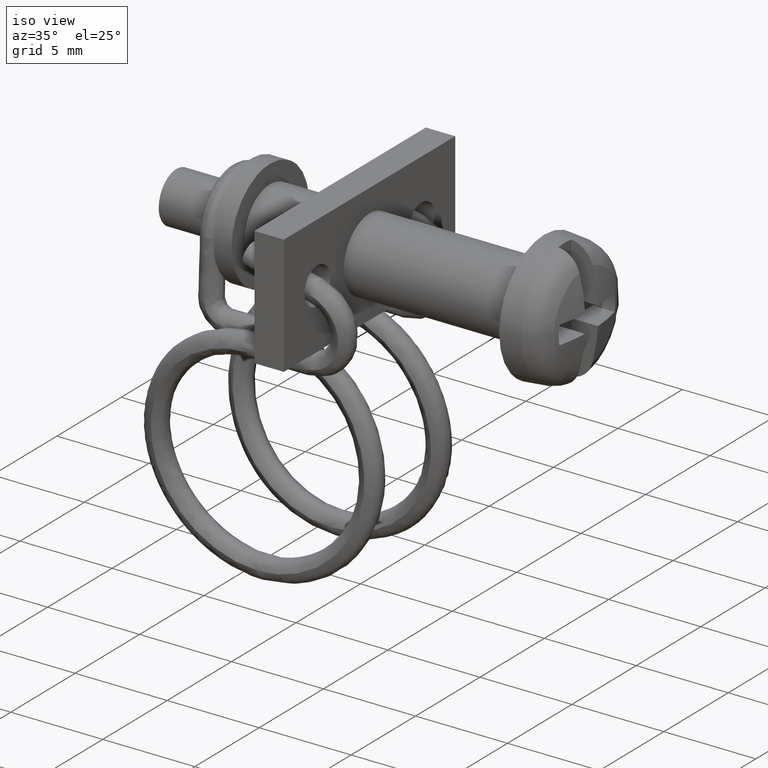
[diagram: clean part render]
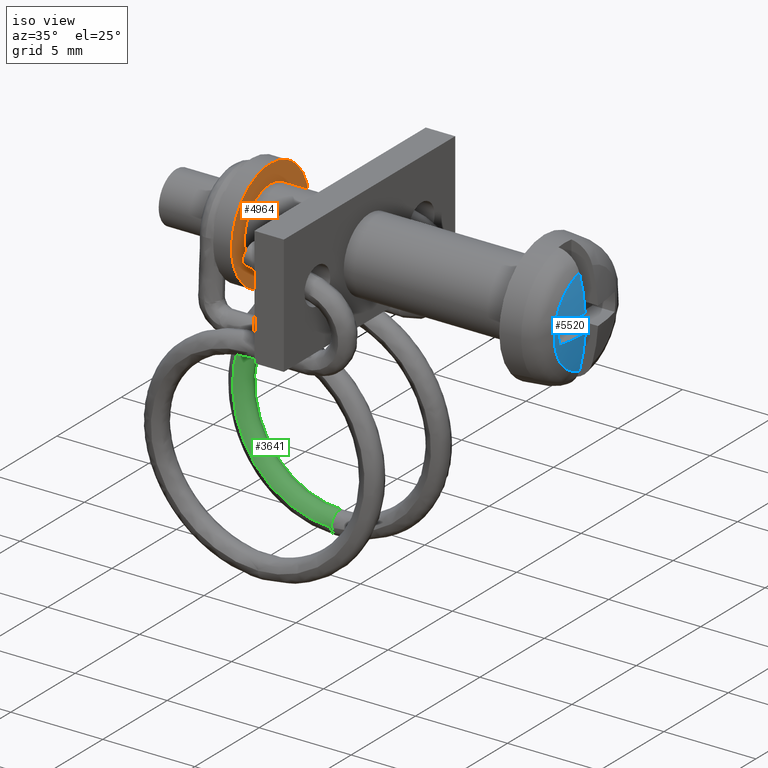
[diagram: same view with three faces highlighted in distinct colors, each labeled with its STEP entity id]
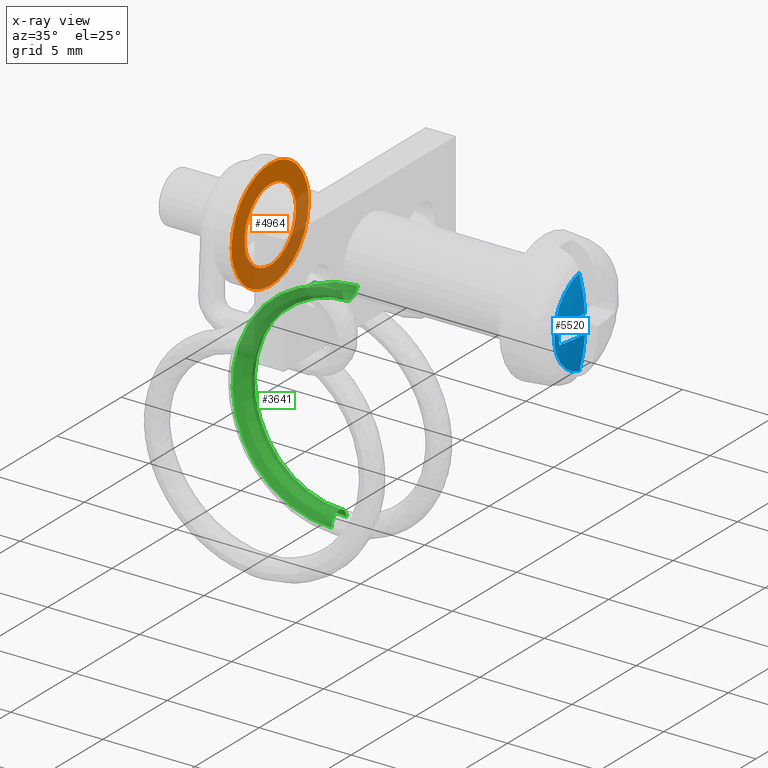
[diagram: x-ray of the same camera — body ghosted, the three highlighted faces saturated]
A machine part, iso view with three faces highlighted in distinct colors.
The next image is the same camera in x-ray (body ghosted, the three faces saturated) — at least one of them is partly hidden behind the body in this view.
Their STEP definitions:

[orange] entity #4964 — the highlighted face is a freeform B-spline surface patch.
#4744=CARTESIAN_POINT('',(-14.900000000000000,2.065063670003760,2.176123079450290));
#4745=VERTEX_POINT('',#4744);
#4751=CARTESIAN_POINT('',(-14.900000000000000,3.000000000000089,-0.000000254959403));
#4752=VERTEX_POINT('',#4751);
#4753=CARTESIAN_POINT('',(-14.900000000000000,2.065063670003760,2.176123079450290));
#4754=CARTESIAN_POINT('',(-14.899999999999970,2.203054138044590,2.045202508520133));
#4755=CARTESIAN_POINT('',(-14.900000000000031,2.462372381570249,1.747388911733006));
#4756=CARTESIAN_POINT('',(-14.899999999999990,2.734672780195056,1.271731790630984));
#4757=CARTESIAN_POINT('',(-14.900000000000020,2.943889484904496,0.684723662998959));
#4758=CARTESIAN_POINT('',(-14.899999999999990,3.000087652233754,0.266311535735887));
#4759=CARTESIAN_POINT('',(-14.900000000000000,3.000000000000089,-0.000000254959403));
#4760=B_SPLINE_CURVE_WITH_KNOTS('',3,(#4753,#4754,#4755,#4756,#4757,#4758,#4759),.UNSPECIFIED.,.F.,.U.,(4,1,1,1,4),(3.698902E-009,0.570644660897853,1.179333868178889,1.635846353205389,2.434750866228688),.UNSPECIFIED.);
#4761=EDGE_CURVE('',#4745,#4752,#4760,.T.);
#4763=CARTESIAN_POINT('',(-14.900000000000000,0.0,-3.000000000000100));
#4764=VERTEX_POINT('',#4763);
#4765=CARTESIAN_POINT('',(-14.900000000000000,3.000000000000089,-0.000000254959403));
#4766=CARTESIAN_POINT('',(-14.900000000000031,3.000079297246153,-0.257718953277689));
#4767=CARTESIAN_POINT('',(-14.899999999999970,2.950662022771410,-0.638099746924043));
#4768=CARTESIAN_POINT('',(-14.900000000000050,2.773244525541358,-1.175129320193690));
#4769=CARTESIAN_POINT('',(-14.899999999999990,2.560130134990668,-1.592137555500575));
#4770=CARTESIAN_POINT('',(-14.900000000000009,2.249570305680098,-2.005540957194263));
#4771=CARTESIAN_POINT('',(-14.899999999999990,1.919504296492258,-2.319782161040233));
#4772=CARTESIAN_POINT('',(-14.900000000000050,1.497325036896052,-2.617146443446997));
#4773=CARTESIAN_POINT('',(-14.899999999999890,1.017386156787128,-2.844150935536641));
#4774=CARTESIAN_POINT('',(-14.900000000000210,0.478599515442199,-2.975563080418534));
#4775=CARTESIAN_POINT('',(-14.899999999999739,0.147259996045073,-3.000004708939242));
#4776=CARTESIAN_POINT('',(-14.900000000000000,0.0,-3.000000000000100));
#4777=B_SPLINE_CURVE_WITH_KNOTS('',3,(#4765,#4766,#4767,#4768,#4769,#4770,#4771,#4772,#4773,#4774,#4775,#4776),.UNSPECIFIED.,.F.,.U.,(4,1,1,1,1,1,1,1,1,4),(0.000000010533798,0.773128922152843,1.141288644326732,1.693528282364895,2.172138656100433,2.687541942318203,3.055703767038952,3.718393118668230,4.270634589381594,4.712418404925385),.UNSPECIFIED.);
#4778=EDGE_CURVE('',#4752,#4764,#4777,.T.);
#4780=CARTESIAN_POINT('',(-14.900000000000000,-2.065063670003762,-2.176123079450290));
#4781=VERTEX_POINT('',#4780);
#4782=CARTESIAN_POINT('',(-14.900000000000000,0.0,-3.000000000000100));
#4783=CARTESIAN_POINT('',(-14.900000000000009,-0.225396620510190,-3.000044230655744));
#4784=CARTESIAN_POINT('',(-14.900000000000000,-0.616848310344913,-2.955666018756227));
#4785=CARTESIAN_POINT('',(-14.900000000000009,-1.149921729438621,-2.785824454536849));
#4786=CARTESIAN_POINT('',(-14.899999999999990,-1.626408777030147,-2.541073476825978));
#4787=CARTESIAN_POINT('',(-14.900000000000009,-1.918797114302085,-2.314964272389476));
#4788=CARTESIAN_POINT('',(-14.900000000000000,-2.065063670003762,-2.176123079450290));
#4789=B_SPLINE_CURVE_WITH_KNOTS('',3,(#4782,#4783,#4784,#4785,#4786,#4787,#4788),.UNSPECIFIED.,.F.,.U.,(4,1,1,1,4),(4.853961E-009,0.676183821870202,1.174419929684330,1.672662295759273,2.277667985881394),.UNSPECIFIED.);
#4790=EDGE_CURVE('',#4764,#4781,#4789,.T.);
#4824=CARTESIAN_POINT('',(-14.900000000000000,-3.000000000000089,0.000000254959396));
#4825=VERTEX_POINT('',#4824);
#4826=CARTESIAN_POINT('',(-14.900000000000000,-2.065063670003762,-2.176123079450290));
#4827=CARTESIAN_POINT('',(-14.900000000000009,-2.184650237468720,-2.062654016862360));
#4828=CARTESIAN_POINT('',(-14.899999999999990,-2.413525502017810,-1.806445352798304));
#4829=CARTESIAN_POINT('',(-14.900000000000009,-2.703387299111326,-1.342053300368203));
#4830=CARTESIAN_POINT('',(-14.899999999999990,-2.937108377937519,-0.735454768230975));
#4831=CARTESIAN_POINT('',(-14.900000000000009,-3.000078610821291,-0.266306797293658));
#4832=CARTESIAN_POINT('',(-14.900000000000000,-3.000000000000089,0.000000254959396));
#4833=B_SPLINE_CURVE_WITH_KNOTS('',3,(#4826,#4827,#4828,#4829,#4830,#4831,#4832),.UNSPECIFIED.,.F.,.U.,(4,1,1,1,4),(3.698852E-009,0.494557996349930,1.027164554394919,1.635846353205385,2.434750866228681),.UNSPECIFIED.);
#4834=EDGE_CURVE('',#4781,#4825,#4833,.T.);
#4836=CARTESIAN_POINT('',(-14.900000000000000,0.0,3.000000000000100));
#4837=VERTEX_POINT('',#4836);
#4838=CARTESIAN_POINT('',(-14.900000000000000,-3.000000000000089,0.000000254959396));
#4839=CARTESIAN_POINT('',(-14.900000000000009,-3.000026513134083,0.196350348227020));
#4840=CARTESIAN_POINT('',(-14.900000000000009,-2.969763660047208,0.503132686380132));
#4841=CARTESIAN_POINT('',(-14.899999999999990,-2.853509789658239,0.955478772585942));
#4842=CARTESIAN_POINT('',(-14.900000000000020,-2.714266081527732,1.297552926623071));
#4843=CARTESIAN_POINT('',(-14.900000000000009,-2.508357041365851,1.661032060962387));
#4844=CARTESIAN_POINT('',(-14.899999999999910,-2.234791709863325,2.025236925857723));
#4845=CARTESIAN_POINT('',(-14.900000000000290,-1.864381124378514,2.369328998035966));
#4846=CARTESIAN_POINT('',(-14.899999999999570,-1.472417976655106,2.624299791176642));
#4847=CARTESIAN_POINT('',(-14.900000000000270,-1.072295233923690,2.813553994308215));
#4848=CARTESIAN_POINT('',(-14.900000000000020,-0.589038723074904,2.960158245257373));
#4849=CARTESIAN_POINT('',(-14.899999999999750,-0.208621496937675,3.000030170632015));
#4850=CARTESIAN_POINT('',(-14.900000000000000,0.0,3.000000000000100));
#4851=B_SPLINE_CURVE_WITH_KNOTS('',3,(#4838,#4839,#4840,#4841,#4842,#4843,#4844,#4845,#4846,#4847,#4848,#4849,#4850),.UNSPECIFIED.,.F.,.U.,(4,1,1,1,1,1,1,1,1,1,4),(0.000000010533904,0.589045832085029,0.920392746120660,1.399001061477161,1.693528282364955,2.172138656100449,2.761175686075597,3.202968723350426,3.571130013842192,4.086554264732343,4.712418404925388),.UNSPECIFIED.);
#4852=EDGE_CURVE('',#4825,#4837,#4851,.T.);
#4854=CARTESIAN_POINT('',(-14.900000000000000,0.0,3.000000000000100));
#4855=CARTESIAN_POINT('',(-14.900000000000020,0.154216360976417,3.000008766000091));
#4856=CARTESIAN_POINT('',(-14.899999999999981,0.450783488535101,2.977081046680209));
#4857=CARTESIAN_POINT('',(-14.900000000000039,0.902876273562747,2.873431336887848));
#4858=CARTESIAN_POINT('',(-14.899999999999959,1.278789218109883,2.723455195217854));
#4859=CARTESIAN_POINT('',(-14.900000000000061,1.682993064511282,2.497297364020336));
#4860=CARTESIAN_POINT('',(-14.899999999999970,1.918799495174014,2.314968376235582));
#4861=CARTESIAN_POINT('',(-14.900000000000000,2.065063670003760,2.176123079450290));
#4862=B_SPLINE_CURVE_WITH_KNOTS('',3,(#4854,#4855,#4856,#4857,#4858,#4859,#4860,#4861),.UNSPECIFIED.,.F.,.U.,(4,1,1,1,1,4),(4.853952E-009,0.462650178354103,0.889715802607461,1.387952188131117,1.672662295759283,2.277667985881392),.UNSPECIFIED.);
#4863=EDGE_CURVE('',#4837,#4745,#4862,.T.);
#4869=CARTESIAN_POINT('',(-14.900000000000000,-3.299699988370934,3.299699988370946));
#4870=CARTESIAN_POINT('',(-14.900000000000000,-3.299699988370934,-3.299700149303487));
#4871=CARTESIAN_POINT('',(-14.900000000000000,3.299700149303475,3.299699988370946));
#4872=CARTESIAN_POINT('',(-14.900000000000000,3.299700149303475,-3.299700149303487));
#4873=B_SPLINE_SURFACE_WITH_KNOTS('',1,1,((#4869,#4871),(#4870,#4872)),.UNSPECIFIED.,.F.,.F.,.U.,(2,2),(2,2),(0.0,6.599400137674433),(0.0,6.599400137674409),.UNSPECIFIED.);
#4874=ORIENTED_EDGE('',*,*,#4852,.F.);
#4875=ORIENTED_EDGE('',*,*,#4834,.F.);
#4876=ORIENTED_EDGE('',*,*,#4790,.F.);
#4877=ORIENTED_EDGE('',*,*,#4778,.F.);
#4878=ORIENTED_EDGE('',*,*,#4761,.F.);
#4879=ORIENTED_EDGE('',*,*,#4863,.F.);
#4880=EDGE_LOOP('',(#4874,#4875,#4876,#4877,#4878,#4879));
#4881=FACE_OUTER_BOUND('',#4880,.T.);
#4882=CARTESIAN_POINT('',(-14.900000000000000,1.999999999999975,-0.000000314411281));
#4883=VERTEX_POINT('',#4882);
#4884=CARTESIAN_POINT('',(-14.900000000000000,0.0,-2.0));
#4885=VERTEX_POINT('',#4884);
#4886=CARTESIAN_POINT('',(-14.900000000000000,1.999999999999975,-0.000000314411281));
#4887=CARTESIAN_POINT('',(-14.899999999999990,2.000008155719923,-0.114535417553394));
#4888=CARTESIAN_POINT('',(-14.900000000000031,1.980272853691995,-0.343608007597904));
#4889=CARTESIAN_POINT('',(-14.900000000000020,1.898652491976305,-0.653278822051518));
#4890=CARTESIAN_POINT('',(-14.899999999999981,1.777402492310881,-0.931396995923802));
#4891=CARTESIAN_POINT('',(-14.899999999999981,1.609579040440078,-1.203780349992311));
#4892=CARTESIAN_POINT('',(-14.900000000000130,1.397206438350926,-1.443954676846508));
#4893=CARTESIAN_POINT('',(-14.899999999999810,1.136015289036083,-1.655633608238000));
#4894=CARTESIAN_POINT('',(-14.900000000000411,0.873517895826519,-1.808622125219186));
#4895=CARTESIAN_POINT('',(-14.899999999999579,0.490828087594195,-1.956254570193969));
#4896=CARTESIAN_POINT('',(-14.900000000000230,0.196363469203554,-2.000099333222057));
#4897=CARTESIAN_POINT('',(-14.900000000000000,0.0,-2.0));
#4898=B_SPLINE_CURVE_WITH_KNOTS('',3,(#4886,#4887,#4888,#4889,#4890,#4891,#4892,#4893,#4894,#4895,#4896,#4897),.UNSPECIFIED.,.F.,.U.,(4,1,1,1,1,1,1,1,1,4),(0.000000029857137,0.343606580527573,0.687227223677613,0.957211241172981,1.251738786557474,1.644427914901911,1.914412801574295,2.258033519522062,2.552560821894605,3.141612188542832),.UNSPECIFIED.);
#4899=EDGE_CURVE('',#4883,#4885,#4898,.T.);
#4900=ORIENTED_EDGE('',*,*,#4899,.T.);
#4901=CARTESIAN_POINT('',(-14.899999999999910,-1.376709079029236,-1.450748702476780));
#4902=VERTEX_POINT('',#4901);
#4903=CARTESIAN_POINT('',(-14.900000000000000,0.0,-2.0));
#4904=CARTESIAN_POINT('',(-14.900000000000009,-0.142355018780487,-2.000023292912858));
#4905=CARTESIAN_POINT('',(-14.899999999999959,-0.419144343871515,-1.970323662178249));
#4906=CARTESIAN_POINT('',(-14.899999999999959,-0.759309023764863,-1.859723965886550));
#4907=CARTESIAN_POINT('',(-14.899999999999929,-1.083476322009569,-1.693202905611184));
#4908=CARTESIAN_POINT('',(-14.899999999999920,-1.267732855276667,-1.554208360055810));
#4909=CARTESIAN_POINT('',(-14.899999999999910,-1.376709079029236,-1.450748702476780));
#4910=B_SPLINE_CURVE_WITH_KNOTS('',3,(#4903,#4904,#4905,#4906,#4907,#4908,#4909),.UNSPECIFIED.,.F.,.U.,(4,1,1,1,4),(7.946711E-009,0.427062910394761,0.830396943125442,1.067655790018455,1.518445297156765),.UNSPECIFIED.);
#4911=EDGE_CURVE('',#4885,#4902,#4910,.T.);
#4912=ORIENTED_EDGE('',*,*,#4911,.T.);
#4913=CARTESIAN_POINT('',(-14.900000000000000,-1.999999999999975,0.000000314411297));
#4914=VERTEX_POINT('',#4913);
#4915=CARTESIAN_POINT('',(-14.899999999999910,-1.376709079029236,-1.450748702476780));
#4916=CARTESIAN_POINT('',(-14.899999999999910,-1.499396996997618,-1.334397114725205));
#4917=CARTESIAN_POINT('',(-14.899999999999929,-1.666414192221337,-1.129714986059279));
#4918=CARTESIAN_POINT('',(-14.900000000000000,-1.849270321219384,-0.785429771417444));
#4919=CARTESIAN_POINT('',(-14.899999999999880,-1.968000497898075,-0.431137012396466));
#4920=CARTESIAN_POINT('',(-14.900000000000070,-2.000032113358898,-0.152173821194623));
#4921=CARTESIAN_POINT('',(-14.900000000000000,-1.999999999999975,0.000000314411297));
#4922=B_SPLINE_CURVE_WITH_KNOTS('',3,(#4915,#4916,#4917,#4918,#4919,#4920,#4921),.UNSPECIFIED.,.F.,.U.,(4,1,1,1,4),(8.135130E-009,0.507241373442389,0.786225956243331,1.166651342152826,1.623167387036379),.UNSPECIFIED.);
#4923=EDGE_CURVE('',#4902,#4914,#4922,.T.);
#4924=ORIENTED_EDGE('',*,*,#4923,.T.);
#4925=CARTESIAN_POINT('',(-14.900000000000000,0.0,2.0));
#4926=VERTEX_POINT('',#4925);
#4927=CARTESIAN_POINT('',(-14.900000000000000,-1.999999999999975,0.000000314411297));
#4928=CARTESIAN_POINT('',(-14.899999999999990,-2.000115272046115,0.212722409340958));
#4929=CARTESIAN_POINT('',(-14.900000000000070,-1.938069547270850,0.597174230155298));
#4930=CARTESIAN_POINT('',(-14.899999999999920,-1.705825932478294,1.080478358852692));
#4931=CARTESIAN_POINT('',(-14.900000000000150,-1.444708266868800,1.398600909375028));
#4932=CARTESIAN_POINT('',(-14.899999999999970,-1.188781665479822,1.616612586791450));
#4933=CARTESIAN_POINT('',(-14.899999999999981,-0.904632182797054,1.796581815483752));
#4934=CARTESIAN_POINT('',(-14.900000000000110,-0.507214102579900,1.955528454883739));
#4935=CARTESIAN_POINT('',(-14.900000000000160,-0.179988796680562,2.000052049173404));
#4936=CARTESIAN_POINT('',(-14.900000000000000,0.0,2.0));
#4937=B_SPLINE_CURVE_WITH_KNOTS('',3,(#4927,#4928,#4929,#4930,#4931,#4932,#4933,#4934,#4935,#4936),.UNSPECIFIED.,.F.,.U.,(4,1,1,1,1,1,1,4),(0.000000029858240,0.638137611436174,1.153562762148263,1.595341129728596,1.865328786315013,2.159857474877020,2.601651754572452,3.141612188542816),.UNSPECIFIED.);
#4938=EDGE_CURVE('',#4914,#4926,#4937,.T.);
#4939=ORIENTED_EDGE('',*,*,#4938,.T.);
#4940=CARTESIAN_POINT('',(-14.899999999999910,1.376709079029239,1.450748702476783));
#4941=VERTEX_POINT('',#4940);
#4942=CARTESIAN_POINT('',(-14.900000000000000,0.0,2.0));
#4943=CARTESIAN_POINT('',(-14.900000000000000,0.126536949892245,2.000013690308272));
#4944=CARTESIAN_POINT('',(-14.899999999999970,0.387513994996905,1.975154918911976));
#4945=CARTESIAN_POINT('',(-14.899999999999959,0.699743214402646,1.881770418890741));
#4946=CARTESIAN_POINT('',(-14.899999999999920,1.043764963844745,1.720266947908012));
#4947=CARTESIAN_POINT('',(-14.899999999999929,1.244803133074162,1.576012172983094));
#4948=CARTESIAN_POINT('',(-14.899999999999910,1.376709079029239,1.450748702476783));
#4949=B_SPLINE_CURVE_WITH_KNOTS('',3,(#4942,#4943,#4944,#4945,#4946,#4947,#4948),.UNSPECIFIED.,.F.,.U.,(4,1,1,1,4),(7.946785E-009,0.379611330251685,0.782943469145450,0.972751187088852,1.518445297156766),.UNSPECIFIED.);
#4950=EDGE_CURVE('',#4926,#4941,#4949,.T.);
#4951=ORIENTED_EDGE('',*,*,#4950,.T.);
#4952=CARTESIAN_POINT('',(-14.899999999999910,1.376709079029239,1.450748702476783));
#4953=CARTESIAN_POINT('',(-14.899999999999920,1.487114072751629,1.346022577989351));
#4954=CARTESIAN_POINT('',(-14.899999999999920,1.656490309444057,1.143803860488328));
#4955=CARTESIAN_POINT('',(-14.899999999999951,1.823491037448231,0.838734336037355));
#4956=CARTESIAN_POINT('',(-14.899999999999951,1.958993316546323,0.473379824539952));
#4957=CARTESIAN_POINT('',(-14.900000000000020,2.000078557055857,0.194451843516232));
#4958=CARTESIAN_POINT('',(-14.900000000000000,1.999999999999975,-0.000000314411281));
#4959=B_SPLINE_CURVE_WITH_KNOTS('',3,(#4952,#4953,#4954,#4955,#4956,#4957,#4958),.UNSPECIFIED.,.F.,.U.,(4,1,1,1,4),(8.134967E-009,0.456516053018479,0.786225956243233,1.039841108499457,1.623167387036367),.UNSPECIFIED.);
#4960=EDGE_CURVE('',#4941,#4883,#4959,.T.);
#4961=ORIENTED_EDGE('',*,*,#4960,.T.);
#4962=EDGE_LOOP('',(#4900,#4912,#4924,#4939,#4951,#4961));
#4963=FACE_BOUND('',#4962,.T.);
#4964=ADVANCED_FACE('',(#4881,#4963),#4873,.T.);

[blue] entity #5520 — the highlighted face is a freeform B-spline surface patch.
#5126=CARTESIAN_POINT('',(2.256508772696205,-0.500000000000085,-2.411372895201095));
#5127=VERTEX_POINT('',#5126);
#5128=CARTESIAN_POINT('',(2.256508772696885,-0.500000000000085,2.411372895201425));
#5129=VERTEX_POINT('',#5128);
#5130=CARTESIAN_POINT('',(2.256508772696205,-0.500000000000085,-2.411372895201095));
#5131=CARTESIAN_POINT('',(2.256508772696171,-0.628702469693365,-2.384694780276541));
#5132=CARTESIAN_POINT('',(2.256508772696114,-0.890254311236459,-2.308196020209948));
#5133=CARTESIAN_POINT('',(2.256508772696026,-1.246617288987768,-2.136072267959086));
#5134=CARTESIAN_POINT('',(2.256508772695997,-1.563502032939717,-1.914552311501160));
#5135=CARTESIAN_POINT('',(2.256508772695920,-1.812009414430430,-1.678569730616219));
#5136=CARTESIAN_POINT('',(2.256508772695927,-2.059741435368587,-1.370903651019632));
#5137=CARTESIAN_POINT('',(2.256508772695902,-2.262793964633534,-1.009898778681086));
#5138=CARTESIAN_POINT('',(2.256508772695938,-2.415059044429890,-0.550773490474379));
#5139=CARTESIAN_POINT('',(2.256508772695977,-2.470128248334648,-0.140493545331823));
#5140=CARTESIAN_POINT('',(2.256508772696046,-2.455789517148869,0.307092890848903));
#5141=CARTESIAN_POINT('',(2.256508772696122,-2.370591001015443,0.721414886508366));
#5142=CARTESIAN_POINT('',(2.256508772696233,-2.187851344176257,1.159764793094442));
#5143=CARTESIAN_POINT('',(2.256508772696358,-1.947955289367318,1.528803730095644));
#5144=CARTESIAN_POINT('',(2.256508772696465,-1.675900278782685,1.816226635379022));
#5145=CARTESIAN_POINT('',(2.256508772696561,-1.400422416797184,2.033923963154379));
#5146=CARTESIAN_POINT('',(2.256508772696816,-1.031431130430676,2.255504016560192));
#5147=CARTESIAN_POINT('',(2.256508772696688,-0.714519400621248,2.366958516852632));
#5148=CARTESIAN_POINT('',(2.256508772696885,-0.500000000000085,2.411372895201425));
#5149=B_SPLINE_CURVE_WITH_KNOTS('',3,(#5130,#5131,#5132,#5133,#5134,#5135,#5136,#5137,#5138,#5139,#5140,#5141,#5142,#5143,#5144,#5145,#5146,#5147,#5148),.UNSPECIFIED.,.F.,.U.,(4,1,1,1,1,1,1,1,1,1,1,1,1,1,1,1,4),(0.000000059449890,0.394316214459688,0.814915343337160,1.182952340803997,1.550989338011291,1.840161129687814,2.365919408757942,2.786533103060719,3.286015163828624,3.601449980056948,4.127211296843047,4.547812709027152,5.021003089060002,5.441611643219557,5.730779982856219,6.072535333457639,6.729721438109969),.UNSPECIFIED.);
#5150=EDGE_CURVE('',#5127,#5129,#5149,.T.);
#5449=CARTESIAN_POINT('',(1.856179316699085,-2.383162127089032,-2.675067634880655));
#5450=CARTESIAN_POINT('',(2.038801361738668,-1.759398138770197,-2.667134615189443));
#5451=CARTESIAN_POINT('',(2.182668719559644,-0.716257738890581,-2.643375211123613));
#5452=CARTESIAN_POINT('',(2.200899548927200,-0.313550692406507,-2.631779366309617));
#5453=CARTESIAN_POINT('',(2.448818307172315,-2.582189200476477,-0.668646714635617));
#5454=CARTESIAN_POINT('',(2.644955216968132,-1.925174571930398,-0.648624506668547));
#5455=CARTESIAN_POINT('',(2.796758206163811,-0.824495215258329,-0.623554549081720));
#5456=CARTESIAN_POINT('',(2.814622676948523,-0.399383229806598,-0.615825688270631));
#5457=CARTESIAN_POINT('',(2.007524400117222,-2.582189200476477,2.003465273300164));
#5458=CARTESIAN_POINT('',(2.201098645439058,-1.925174571930398,2.039004864019421));
#5459=CARTESIAN_POINT('',(2.352901634634737,-0.824495215258329,2.064074821606249));
#5460=CARTESIAN_POINT('',(2.371756120191964,-0.399383229806598,2.065808969371050));
#5461=CARTESIAN_POINT('',(1.830834334045181,-2.564769223161711,2.583652532614089));
#5462=CARTESIAN_POINT('',(2.022501268932380,-1.910660881939486,2.622383288181053));
#5463=CARTESIAN_POINT('',(2.173609495359559,-0.815019048185280,2.647338507097505));
#5464=CARTESIAN_POINT('',(2.192775962390069,-0.391869409680039,2.647769716632616));
#5472=(BOUNDED_SURFACE()B_SPLINE_SURFACE(2,2,((#5449,#5453,#5457,#5461),(#5450,#5454,#5458,#5462),(#5451,#5455,#5459,#5463),(#5452,#5456,#5460,#5464)),.UNSPECIFIED.,.F.,.F.,.U.)B_SPLINE_SURFACE_WITH_KNOTS((3,1,3),(3,1,3),(0.0,1.369360173036001,2.218971274791768),(0.0,4.220320107045024,5.438776520862650),.UNSPECIFIED.)GEOMETRIC_REPRESENTATION_ITEM()RATIONAL_B_SPLINE_SURFACE(((1.060966520284160,1.005807160336934,1.005807160336934,1.010404942899327),(1.055159359947226,1.0,1.0,1.004597782562393),(1.055159359947226,1.0,1.0,1.004597782562393),(1.057394829655676,1.002235469708450,1.002235469708450,1.006833252270843)))REPRESENTATION_ITEM('')SURFACE());
#5473=CARTESIAN_POINT('',(2.326464494801560,-2.144455000000195,0.500000000000099));
#5474=VERTEX_POINT('',#5473);
#5475=CARTESIAN_POINT('',(2.572176291042340,-0.500000000000085,0.500000000000099));
#5476=VERTEX_POINT('',#5475);
#5477=CARTESIAN_POINT('',(2.326464494801560,-2.144455000000195,0.500000000000099));
#5478=CARTESIAN_POINT('',(2.458964283388663,-1.605468349375717,0.500000000000099));
#5479=CARTESIAN_POINT('',(2.541317881691355,-1.054174006477248,0.500000000000097));
#5480=CARTESIAN_POINT('',(2.572176291042340,-0.500000000000085,0.500000000000099));
#5481=B_SPLINE_CURVE_WITH_KNOTS('',3,(#5477,#5478,#5479,#5480),.UNSPECIFIED.,.F.,.U.,(4,4),(2.241638E-010,1.665093985221967),.UNSPECIFIED.);
#5482=EDGE_CURVE('',#5474,#5476,#5481,.T.);
#5483=ORIENTED_EDGE('',*,*,#5482,.T.);
#5484=CARTESIAN_POINT('',(2.572176291042340,-0.500000000000085,0.500000000000099));
#5485=CARTESIAN_POINT('',(2.536223183211430,-0.500000000000086,1.146016589701980));
#5486=CARTESIAN_POINT('',(2.430215067994318,-0.500000000000085,1.788106636752960));
#5487=CARTESIAN_POINT('',(2.256508772696885,-0.500000000000085,2.411372895201425));
#5488=B_SPLINE_CURVE_WITH_KNOTS('',3,(#5484,#5485,#5486,#5487),.UNSPECIFIED.,.F.,.U.,(4,4),(2.530358E-010,1.941039089978915),.UNSPECIFIED.);
#5489=EDGE_CURVE('',#5476,#5129,#5488,.T.);
#5490=ORIENTED_EDGE('',*,*,#5489,.T.);
#5491=ORIENTED_EDGE('',*,*,#5150,.F.);
#5492=CARTESIAN_POINT('',(2.572176291043225,-0.500000000000085,-0.500000000000000));
#5493=VERTEX_POINT('',#5492);
#5494=CARTESIAN_POINT('',(2.256508772696205,-0.500000000000085,-2.411372895201095));
#5495=CARTESIAN_POINT('',(2.430213327264994,-0.500000000000085,-1.788106776077297));
#5496=CARTESIAN_POINT('',(2.536224577666949,-0.500000000000085,-1.146016562781042));
#5497=CARTESIAN_POINT('',(2.572176291043225,-0.500000000000085,-0.500000000000000));
#5498=B_SPLINE_CURVE_WITH_KNOTS('',3,(#5494,#5495,#5496,#5497),.UNSPECIFIED.,.F.,.U.,(4,4),(2.529477E-010,1.941039089978846),.UNSPECIFIED.);
#5499=EDGE_CURVE('',#5127,#5493,#5498,.T.);
#5500=ORIENTED_EDGE('',*,*,#5499,.T.);
#5501=CARTESIAN_POINT('',(2.326464495694070,-2.144455384278155,-0.500000015609000));
#5502=VERTEX_POINT('',#5501);
#5503=CARTESIAN_POINT('',(2.572176291043225,-0.500000000000085,-0.500000000000000));
#5504=CARTESIAN_POINT('',(2.541336212635552,-1.054176630946263,-0.499999994780482));
#5505=CARTESIAN_POINT('',(2.458946448574594,-1.605465779600845,-0.500000000016692));
#5506=CARTESIAN_POINT('',(2.326464495694070,-2.144455384278155,-0.500000015609000));
#5507=B_SPLINE_CURVE_WITH_KNOTS('',3,(#5503,#5504,#5505,#5506),.UNSPECIFIED.,.F.,.U.,(4,4),(2.242107E-010,1.665094360986309),.UNSPECIFIED.);
#5508=EDGE_CURVE('',#5493,#5502,#5507,.T.);
#5509=ORIENTED_EDGE('',*,*,#5508,.T.);
#5510=CARTESIAN_POINT('',(2.326464495694070,-2.144455384278155,-0.500000015609000));
#5511=CARTESIAN_POINT('',(2.326460937949978,-2.175498565938710,-0.366964810932297));
#5512=CARTESIAN_POINT('',(2.326455688143083,-2.221304752010998,-0.032351956697804));
#5513=CARTESIAN_POINT('',(2.326459288643312,-2.189884638886466,0.305568267064011));
#5514=CARTESIAN_POINT('',(2.326464494801560,-2.144455000000195,0.500000000000099));
#5515=B_SPLINE_CURVE_WITH_KNOTS('',3,(#5510,#5511,#5512,#5513,#5514),.UNSPECIFIED.,.F.,.U.,(4,1,4),(1.669114E-009,0.409832863211601,1.008815790480317),.UNSPECIFIED.);
#5516=EDGE_CURVE('',#5502,#5474,#5515,.T.);
#5517=ORIENTED_EDGE('',*,*,#5516,.T.);
#5518=EDGE_LOOP('',(#5483,#5490,#5491,#5500,#5509,#5517));
#5519=FACE_OUTER_BOUND('',#5518,.T.);
#5520=ADVANCED_FACE('',(#5519),#5472,.T.);

[green] entity #3641 — the highlighted face is a freeform B-spline surface patch.
#3320=CARTESIAN_POINT('',(-13.150000000000000,2.250682573331275,-15.278611572537450));
#3321=VERTEX_POINT('',#3320);
#3337=CARTESIAN_POINT('',(-13.150000000000000,3.449317426677660,-15.221388427477610));
#3338=VERTEX_POINT('',#3337);
#3352=CARTESIAN_POINT('',(-13.150000000000000,2.250682573331275,-15.278611572537450));
#3353=CARTESIAN_POINT('',(-13.150000000000000,2.235701588986667,-14.964809701735261));
#3354=CARTESIAN_POINT('',(-13.150000000000000,2.507586556673741,-14.665663557676300));
#3355=CARTESIAN_POINT('',(-13.150000000000000,3.135190298275357,-14.635701588987081));
#3356=CARTESIAN_POINT('',(-13.150000000000000,3.434336442333050,-14.907586556675421));
#3357=CARTESIAN_POINT('',(-13.150000000000000,3.449317426677660,-15.221388427477610));
#3358=B_SPLINE_CURVE_WITH_KNOTS('',3,(#3352,#3353,#3354,#3355,#3356,#3357),.UNSPECIFIED.,.F.,.U.,(4,2,4),(0.500000000000000,0.750000000000000,1.0),.UNSPECIFIED.);
#3359=EDGE_CURVE('',#3321,#3338,#3358,.T.);
#3465=CARTESIAN_POINT('',(-12.970582527618340,3.112764529939515,-3.912972878568734));
#3466=CARTESIAN_POINT('',(-12.975603744247010,3.073689817955851,-4.069440621562304));
#3467=CARTESIAN_POINT('',(-12.985855611108470,3.139894622754153,-4.406546286765210));
#3468=CARTESIAN_POINT('',(-12.991708181839689,3.418885908443482,-4.609668021260140));
#3469=CARTESIAN_POINT('',(-12.992952056864830,3.735690205549230,-4.673561952667490));
#3470=CARTESIAN_POINT('',(-12.989472802353220,4.071661201953194,-4.594376532917557));
#3471=CARTESIAN_POINT('',(-12.980305693838369,4.263105764188881,-4.308404835872112));
#3472=CARTESIAN_POINT('',(-12.975239762002291,4.287509771639305,-4.149418856528062));
#3473=CARTESIAN_POINT('',(-13.030388355646000,3.112477001222865,-3.913226744576231));
#3474=CARTESIAN_POINT('',(-13.033735832773431,3.074013551538009,-4.069131675139067));
#3475=CARTESIAN_POINT('',(-13.040570408758770,3.139063876139769,-4.406723033356332));
#3476=CARTESIAN_POINT('',(-13.044472121628770,3.419092848933141,-4.609201110521919));
#3477=CARTESIAN_POINT('',(-13.045301370904950,3.735637601638052,-4.673117744346067));
#3478=CARTESIAN_POINT('',(-13.042981867051781,4.072510064438839,-4.595152375426382));
#3479=CARTESIAN_POINT('',(-13.036870459298070,4.262945314898585,-4.307904736219724));
#3480=CARTESIAN_POINT('',(-13.033493170678540,4.287566568606945,-4.149630218307673));
#3481=CARTESIAN_POINT('',(-13.090194186195561,3.112370148612936,-3.913264210159497));
#3482=CARTESIAN_POINT('',(-13.091867927097070,3.075539710561093,-4.067569658970711));
#3483=CARTESIAN_POINT('',(-13.095285217464729,3.134662851539944,-4.410251063674351));
#3484=CARTESIAN_POINT('',(-13.097236065365401,3.421996290599072,-4.607784290802558));
#3485=CARTESIAN_POINT('',(-13.097650680952579,3.733645922176423,-4.670936373981776));
#3486=CARTESIAN_POINT('',(-13.096490920209060,4.074699864156632,-4.598692180885755));
#3487=CARTESIAN_POINT('',(-13.093435219118691,4.262641457236042,-4.306628179080008));
#3488=CARTESIAN_POINT('',(-13.091746577006131,4.287621242426202,-4.149652159246435));
#3489=CARTESIAN_POINT('',(-13.897572591691910,3.112600461316691,-3.912947479740968));
#3490=CARTESIAN_POINT('',(-13.876650793669789,3.069649042821894,-4.073040601097237));
#3491=CARTESIAN_POINT('',(-13.833934630956479,3.149495117396009,-4.400629867210348));
#3492=CARTESIAN_POINT('',(-13.809549130561640,3.418606137514059,-4.605898616360062));
#3493=CARTESIAN_POINT('',(-13.804366540173181,3.736745034734827,-4.669590887683520));
#3494=CARTESIAN_POINT('',(-13.818863652803730,4.063954630585389,-4.584405839699241));
#3495=CARTESIAN_POINT('',(-13.857059878406220,4.264602478239953,-4.313189140753220));
#3496=CARTESIAN_POINT('',(-13.878167865369180,4.287691898077992,-4.149427796154959));
#3497=CARTESIAN_POINT('',(-15.383912512336259,3.088892222198391,-4.220324616945938));
#3498=CARTESIAN_POINT('',(-15.321425647016820,3.053399571399665,-4.367871389763887));
#3499=CARTESIAN_POINT('',(-15.193845567831010,3.126925473661959,-4.685465399944112));
#3500=CARTESIAN_POINT('',(-15.121012092568460,3.399965848703107,-4.882941241215832));
#3501=CARTESIAN_POINT('',(-15.105531996136600,3.713487594938813,-4.944021188681648));
#3502=CARTESIAN_POINT('',(-15.148829524989880,4.044511092146053,-4.863877368697379));
#3503=CARTESIAN_POINT('',(-15.262911184185850,4.239314119177626,-4.598422015775454));
#3504=CARTESIAN_POINT('',(-15.325955051647330,4.265321361857252,-4.448887013784206));
#3505=CARTESIAN_POINT('',(-16.649422094693030,3.025991692923850,-5.054316901993172));
#3506=CARTESIAN_POINT('',(-16.551616202028210,2.990149845766611,-5.180376101887774));
#3507=CARTESIAN_POINT('',(-16.351925667089191,3.070823069606171,-5.447756152952033));
#3508=CARTESIAN_POINT('',(-16.237927555608181,3.343896635452732,-5.617261446429069));
#3509=CARTESIAN_POINT('',(-16.213699603186441,3.659101830050129,-5.672632371727397));
#3510=CARTESIAN_POINT('',(-16.281470477301600,3.986537170045859,-5.608653918683877));
#3511=CARTESIAN_POINT('',(-16.460030444268430,4.180514908813905,-5.389535258075973));
#3512=CARTESIAN_POINT('',(-16.558706076895149,4.203898779651691,-5.261286188818016));
#3513=CARTESIAN_POINT('',(-18.229648610325029,2.906465596994755,-6.635320386961216));
#3514=CARTESIAN_POINT('',(-18.087820032046551,2.874683056598472,-6.717061196530731));
#3515=CARTESIAN_POINT('',(-17.798247833019250,2.961743203914653,-6.895123081356184));
#3516=CARTESIAN_POINT('',(-17.632936390145179,3.238714152822269,-7.013416244745718));
#3517=CARTESIAN_POINT('',(-17.597801437144081,3.554113701046288,-7.057787597163977));
#3518=CARTESIAN_POINT('',(-17.696075609426821,3.879343183112495,-7.024213424636686));
#3519=CARTESIAN_POINT('',(-17.955009516282029,4.067061178047099,-6.884786389022612));
#3520=CARTESIAN_POINT('',(-18.098101438023619,4.087560495761303,-6.801452431496734));
#3521=CARTESIAN_POINT('',(-18.842506797766731,2.794599605175112,-8.116044636402375));
#3522=CARTESIAN_POINT('',(-18.683693472735659,2.765637694002659,-8.156897922701019));
#3523=CARTESIAN_POINT('',(-18.359446265210661,2.859104554853619,-8.250965312923107));
#3524=CARTESIAN_POINT('',(-18.174344424862650,3.139698899536382,-8.321362136299277));
#3525=CARTESIAN_POINT('',(-18.135006292821299,3.456165057586611,-8.355596232302716));
#3526=CARTESIAN_POINT('',(-18.245050534337569,3.779235925652903,-8.350495454022637));
#3527=CARTESIAN_POINT('',(-18.534985089268950,3.961324613967252,-8.286195133300643));
#3528=CARTESIAN_POINT('',(-18.695207447936848,3.978540366150897,-8.244037465562554));
#3529=CARTESIAN_POINT('',(-18.842203267075661,2.569412603579280,-11.095569639411730));
#3530=CARTESIAN_POINT('',(-18.683396171260728,2.547183390411443,-11.052671044764461));
#3531=CARTESIAN_POINT('',(-18.359163720958659,2.653868959350141,-10.976378710087010));
#3532=CARTESIAN_POINT('',(-18.174074399185859,2.941603722313118,-10.949815755814219));
#3533=CARTESIAN_POINT('',(-18.134741553473550,3.259256786525951,-10.963502500038951));
#3534=CARTESIAN_POINT('',(-18.244782767077389,3.577662749401918,-11.016188831209320));
#3535=CARTESIAN_POINT('',(-18.534699579760609,3.748229799584419,-11.104469940681589));
#3536=CARTESIAN_POINT('',(-18.694911217802542,3.759204275003281,-11.146912004283649));
#3537=CARTESIAN_POINT('',(-18.229057415274280,2.457544851991666,-12.576113590817760));
#3538=CARTESIAN_POINT('',(-18.087246183526521,2.438382041306697,-12.491707904927100));
#3539=CARTESIAN_POINT('',(-17.797708901242590,2.551425804891458,-12.330877840544581));
#3540=CARTESIAN_POINT('',(-17.632415466141751,2.842918711359789,-12.256221324575121));
#3541=CARTESIAN_POINT('',(-17.597283097774170,3.161493415179132,-12.259755236797000));
#3542=CARTESIAN_POINT('',(-17.695544619076369,3.477813338573143,-12.341151403227130));
#3543=CARTESIAN_POINT('',(-17.954449610939172,3.642518128103116,-12.505050765591561));
#3544=CARTESIAN_POINT('',(-18.097525698541801,3.650195504572722,-12.589323559582390));
#3545=CARTESIAN_POINT('',(-16.122040074726069,2.298303728044820,-14.683495095270480));
#3546=CARTESIAN_POINT('',(-16.038925897783709,2.283575607209221,-14.540440201195141));
#3547=CARTESIAN_POINT('',(-15.869232047078260,2.405674085844595,-14.259798725040239));
#3548=CARTESIAN_POINT('',(-15.772359659888410,2.702333489410014,-14.116744582864190));
#3549=CARTESIAN_POINT('',(-15.751772295924599,3.021976232191908,-14.105725842351960));
#3550=CARTESIAN_POINT('',(-15.809363472877440,3.335231438415801,-14.227755713756000));
#3551=CARTESIAN_POINT('',(-15.961099106421210,3.491864073065883,-14.498796478631091));
#3552=CARTESIAN_POINT('',(-16.044950851471839,3.495069072863270,-14.642253956486750));
#3553=CARTESIAN_POINT('',(-14.644754434220131,2.251909022677397,-15.297431180845059));
#3554=CARTESIAN_POINT('',(-14.602922472829960,2.238517675417037,-15.137074760738040));
#3555=CARTESIAN_POINT('',(-14.517513509202260,2.363290662790667,-14.821386391472680));
#3556=CARTESIAN_POINT('',(-14.468754227236820,2.661405426918725,-14.658275465772350));
#3557=CARTESIAN_POINT('',(-14.458390523414071,2.981375190886296,-14.643000977558820));
#3558=CARTESIAN_POINT('',(-14.487376112544821,3.293670529429034,-14.776972096653051));
#3559=CARTESIAN_POINT('',(-14.563749611694320,3.447945713683590,-15.079337087292719));
#3560=CARTESIAN_POINT('',(-14.605955241579570,3.449889272397494,-15.240238965204920));
#3561=CARTESIAN_POINT('',(-13.090209801491890,2.251926233673232,-15.297415752564721));
#3562=CARTESIAN_POINT('',(-13.091883093251930,2.238382307027798,-15.137249998390111));
#3563=CARTESIAN_POINT('',(-13.095299473841999,2.363042019641952,-14.821428855947580));
#3564=CARTESIAN_POINT('',(-13.097249836902940,2.661355067090367,-14.658324832743320));
#3565=CARTESIAN_POINT('',(-13.097664373171630,2.981421641317430,-14.643044758760350));
#3566=CARTESIAN_POINT('',(-13.096504941302261,3.293915887799146,-14.776988699483489));
#3567=CARTESIAN_POINT('',(-13.093450023327311,3.448094917945299,-15.079498039210650));
#3568=CARTESIAN_POINT('',(-13.091761811462250,3.449870574922985,-15.240225629908201));
#3569=CARTESIAN_POINT('',(-13.030419554719620,2.251929066992668,-15.297415130866129));
#3570=CARTESIAN_POINT('',(-13.033766165808380,2.238394600030154,-15.137233869931670));
#3571=CARTESIAN_POINT('',(-13.040598970913690,2.363061591761185,-14.821436254299771));
#3572=CARTESIAN_POINT('',(-13.044499683994140,2.661356979131996,-14.658328107722200));
#3573=CARTESIAN_POINT('',(-13.045328736314319,2.981419522618955,-14.643048282523640));
#3574=CARTESIAN_POINT('',(-13.043009859365609,3.293896543726246,-14.776998123597370));
#3575=CARTESIAN_POINT('',(-13.036900067238960,3.448080513773380,-15.079483312660241));
#3576=CARTESIAN_POINT('',(-13.033523671123371,3.449867041680645,-15.240225447594510));
#3577=CARTESIAN_POINT('',(-12.970629331677920,2.251927410641006,-15.297419424724000));
#3578=CARTESIAN_POINT('',(-12.975649241702980,2.238401741864293,-15.137224342351630));
#3579=CARTESIAN_POINT('',(-12.985898442880940,2.363067134872067,-14.821443117081239));
#3580=CARTESIAN_POINT('',(-12.991749520752640,2.661357229479687,-14.658330529961530));
#3581=CARTESIAN_POINT('',(-12.992993109604649,2.981418978284465,-14.643050751039620));
#3582=CARTESIAN_POINT('',(-12.989514802475959,3.293891170847163,-14.777005528744530));
#3583=CARTESIAN_POINT('',(-12.980350107828480,3.448072042705730,-15.079474581448441));
#3584=CARTESIAN_POINT('',(-12.975285507040260,3.449868661309384,-15.240229649106290));
#3585=B_SPLINE_SURFACE_WITH_KNOTS('',3,3,((#3465,#3473,#3481,#3489,#3497,#3505,#3513,#3521,#3529,#3537,#3545,#3553,#3561,#3569,#3577),(#3466,#3474,#3482,#3490,#3498,#3506,#3514,#3522,#3530,#3538,#3546,#3554,#3562,#3570,#3578),(#3467,#3475,#3483,#3491,#3499,#3507,#3515,#3523,#3531,#3539,#3547,#3555,#3563,#3571,#3579),(#3468,#3476,#3484,#3492,#3500,#3508,#3516,#3524,#3532,#3540,#3548,#3556,#3564,#3572,#3580),(#3469,#3477,#3485,#3493,#3501,#3509,#3517,#3525,#3533,#3541,#3549,#3557,#3565,#3573,#3581),(#3470,#3478,#3486,#3494,#3502,#3510,#3518,#3526,#3534,#3542,#3550,#3558,#3566,#3574,#3582),(#3471,#3479,#3487,#3495,#3503,#3511,#3519,#3527,#3535,#3543,#3551,#3559,#3567,#3575,#3583),(#3472,#3480,#3488,#3496,#3504,#3512,#3520,#3528,#3536,#3544,#3552,#3560,#3568,#3576,#3584)),.UNSPECIFIED.,.F.,.F.,.U.,(4,1,2,1,4),(4,2,1,2,2,2,2,4),(0.0,0.482733535407472,0.965467070814944,1.448200606222289,1.930934141629633),(0.0,0.179418748662977,2.422153106950112,4.664887465237246,9.150356181811494,13.635824898385801,18.121293614960049,18.300712363623031),.UNSPECIFIED.);
#3586=CARTESIAN_POINT('',(-13.150000000000000,3.108097682923939,-3.931654554348345));
#3587=VERTEX_POINT('',#3586);
#3588=CARTESIAN_POINT('',(-13.150000000000000,3.108097682923939,-3.931654554348345));
#3589=CARTESIAN_POINT('',(-14.640227213124470,3.108097682923939,-3.931654554348345));
#3590=CARTESIAN_POINT('',(-16.112908063799701,3.061836032400463,-4.543877215618263));
#3591=CARTESIAN_POINT('',(-18.212977931657480,2.903071108961404,-6.644958409650029));
#3592=CARTESIAN_POINT('',(-18.823839354673549,2.791546208937348,-8.120869240774837));
#3593=CARTESIAN_POINT('',(-18.823536557400981,2.567146626129018,-11.090553810745970));
#3594=CARTESIAN_POINT('',(-18.212388786537620,2.455640336114955,-12.566218358617540));
#3595=CARTESIAN_POINT('',(-16.112270238921450,2.296920290530629,-14.666705643019281));
#3596=CARTESIAN_POINT('',(-14.639837804677249,2.250682573315323,-15.278611572537450));
#3597=CARTESIAN_POINT('',(-13.150000000000000,2.250682573315323,-15.278611572537450));
#3598=B_SPLINE_CURVE_WITH_KNOTS('',3,(#3588,#3589,#3590,#3591,#3592,#3593,#3594,#3595,#3596,#3597),.UNSPECIFIED.,.F.,.U.,(4,2,2,2,4),(0.106285421806451,0.144494037259015,0.182702652711579,0.220911268164144,0.259119883616708),.UNSPECIFIED.);
#3599=EDGE_CURVE('',#3587,#3321,#3598,.T.);
#3600=ORIENTED_EDGE('',*,*,#3599,.T.);
#3601=ORIENTED_EDGE('',*,*,#3359,.T.);
#3602=CARTESIAN_POINT('',(-13.150000000000000,4.284523380528468,-4.168345445636729));
#3603=VERTEX_POINT('',#3602);
#3604=CARTESIAN_POINT('',(-13.150000000000000,4.284523380528468,-4.168345445636729));
#3605=CARTESIAN_POINT('',(-14.601395473290831,4.284523380528468,-4.168345445636729));
#3606=CARTESIAN_POINT('',(-16.035760743332720,4.239468188362447,-4.764601941892142));
#3607=CARTESIAN_POINT('',(-18.081357605838750,4.084821414825846,-6.811183898133701));
#3608=CARTESIAN_POINT('',(-18.676459473801849,3.976179518512834,-8.248941308793379));
#3609=CARTESIAN_POINT('',(-18.676164497714179,3.757576125579505,-11.141919605857391));
#3610=CARTESIAN_POINT('',(-18.080783707251001,3.648952363423784,-12.579437030654930));
#3611=CARTESIAN_POINT('',(-16.035139497904680,3.494349308978703,-14.625440412242391));
#3612=CARTESIAN_POINT('',(-14.601016221487679,3.449317426667025,-15.221388427477610));
#3613=CARTESIAN_POINT('',(-13.150000000000000,3.449317426667025,-15.221388427477610));
#3614=B_SPLINE_CURVE_WITH_KNOTS('',3,(#3604,#3605,#3606,#3607,#3608,#3609,#3610,#3611,#3612,#3613),.UNSPECIFIED.,.F.,.U.,(4,2,2,2,4),(0.106285421806451,0.144494037259015,0.182702652711579,0.220911268164144,0.259119883616708),.UNSPECIFIED.);
#3615=EDGE_CURVE('',#3603,#3338,#3614,.T.);
#3616=ORIENTED_EDGE('',*,*,#3615,.F.);
#3617=CARTESIAN_POINT('',(-13.150000000000000,3.532189454762984,-4.627078831967825));
#3618=VERTEX_POINT('',#3617);
#3619=CARTESIAN_POINT('',(-13.150000000000000,3.532189454762984,-4.627078831967825));
#3620=CARTESIAN_POINT('',(-13.150000000000000,3.547281150419982,-4.631416350583234));
#3621=CARTESIAN_POINT('',(-13.150000000000000,3.562549641346890,-4.635147942235051));
#3622=CARTESIAN_POINT('',(-13.150000000000000,3.731950372343068,-4.669225106782324));
#3623=CARTESIAN_POINT('',(-13.150000000000000,3.897752158055865,-4.636617182347018));
#3624=CARTESIAN_POINT('',(-13.150000000000000,4.159352106948206,-4.462640721016057));
#3625=CARTESIAN_POINT('',(-13.150000000000000,4.253539381404154,-4.322343502065666));
#3626=CARTESIAN_POINT('',(-13.150000000000000,4.284523380528468,-4.168345445636729));
#3627=B_SPLINE_CURVE_WITH_KNOTS('',3,(#3619,#3620,#3621,#3622,#3623,#3624,#3625,#3626),.UNSPECIFIED.,.F.,.U.,(4,2,2,4),(0.737495030336059,0.750000000000000,0.875000000000000,1.0),.UNSPECIFIED.);
#3628=EDGE_CURVE('',#3618,#3603,#3627,.T.);
#3629=ORIENTED_EDGE('',*,*,#3628,.F.);
#3630=CARTESIAN_POINT('',(-13.150000000000000,3.108097682923939,-3.931654554348345));
#3631=CARTESIAN_POINT('',(-13.150000000000000,3.077113473693572,-4.085653341729305));
#3632=CARTESIAN_POINT('',(-13.150000000000000,3.109713030518517,-4.251460197409282));
#3633=CARTESIAN_POINT('',(-13.150000000000000,3.274971470077660,-4.499984486242524));
#3634=CARTESIAN_POINT('',(-13.150000000000000,3.396426579063398,-4.588050023173610));
#3635=CARTESIAN_POINT('',(-13.150000000000000,3.532189454762984,-4.627078831967825));
#3636=B_SPLINE_CURVE_WITH_KNOTS('',3,(#3630,#3631,#3632,#3633,#3634,#3635),.UNSPECIFIED.,.F.,.U.,(4,2,4),(0.500000000000001,0.625000000000001,0.737495030336059),.UNSPECIFIED.);
#3637=EDGE_CURVE('',#3587,#3618,#3636,.T.);
#3638=ORIENTED_EDGE('',*,*,#3637,.F.);
#3639=EDGE_LOOP('',(#3600,#3601,#3616,#3629,#3638));
#3640=FACE_OUTER_BOUND('',#3639,.T.);
#3641=ADVANCED_FACE('',(#3640),#3585,.F.);